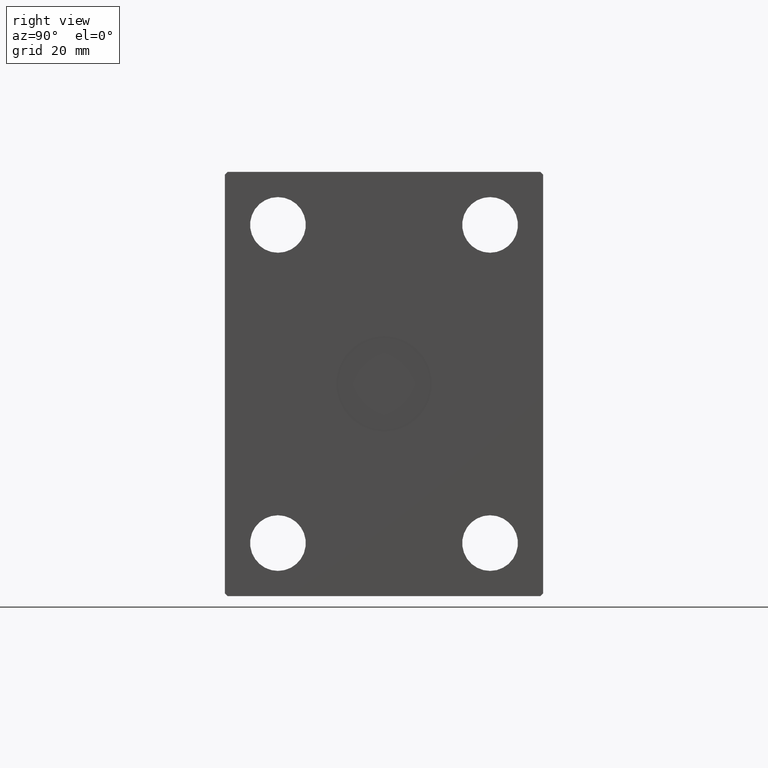
[diagram: clean part render]
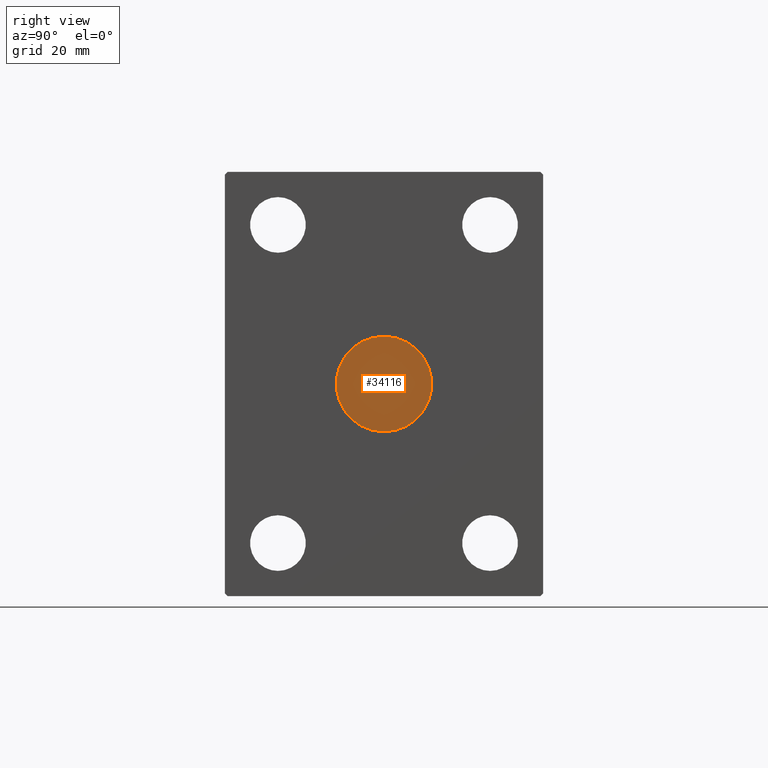
[diagram: same view with one face highlighted and labeled with its STEP entity id]
A machine part, right view. The second image highlights one B-rep face of the part: STEP entity #34116.
In plain terms, the highlighted planar face has unit normal (1, 0, 0).
Its self-contained STEP definition (entity closure, byte-faithful):
#511 = AXIS2_PLACEMENT_3D ( 'NONE', #31539, #34326, #25065 ) ;
#5812 = FACE_OUTER_BOUND ( 'NONE', #16710, .T. ) ;
#7394 = AXIS2_PLACEMENT_3D ( 'NONE', #41521, #9897, #23012 ) ;
#9897 = DIRECTION ( 'NONE',  ( 1.000000000000000000, 0.000000000000000000, 0.000000000000000000 ) ) ;
#15109 = ORIENTED_EDGE ( 'NONE', *, *, #37335, .T. ) ;
#16710 = EDGE_LOOP ( 'NONE', ( #15109, #27184 ) ) ;
#18083 = CARTESIAN_POINT ( 'NONE',  ( 189.7999999999999829, 0.000000000000000000, 0.000000000000000000 ) ) ;
#18947 = PLANE ( 'NONE',  #30967 ) ;
#19350 = EDGE_CURVE ( 'NONE', #29477, #22857, #32810, .T. ) ;
#22857 = VERTEX_POINT ( 'NONE', #26596 ) ;
#23012 = DIRECTION ( 'NONE',  ( 0.000000000000000000, 0.000000000000000000, -1.000000000000000000 ) ) ;
#25065 = DIRECTION ( 'NONE',  ( 0.000000000000000000, 0.000000000000000000, -1.000000000000000000 ) ) ;
#26596 = CARTESIAN_POINT ( 'NONE',  ( 189.7999999999999829, 0.000000000000000000, -18.00000000000000000 ) ) ;
#27184 = ORIENTED_EDGE ( 'NONE', *, *, #19350, .T. ) ;
#29477 = VERTEX_POINT ( 'NONE', #30274 ) ;
#30274 = CARTESIAN_POINT ( 'NONE',  ( 189.7999999999999829, 2.204364238465235428E-15, 18.00000000000000000 ) ) ;
#30967 = AXIS2_PLACEMENT_3D ( 'NONE', #18083, #31212, #32071 ) ;
#31212 = DIRECTION ( 'NONE',  ( 1.000000000000000000, 0.000000000000000000, 0.000000000000000000 ) ) ;
#31539 = CARTESIAN_POINT ( 'NONE',  ( 189.7999999999999829, 0.000000000000000000, 0.000000000000000000 ) ) ;
#32071 = DIRECTION ( 'NONE',  ( 0.000000000000000000, 0.000000000000000000, -1.000000000000000000 ) ) ;
#32810 = CIRCLE ( 'NONE', #7394, 18.00000000000000000 ) ;
#34116 = ADVANCED_FACE ( 'NONE', ( #5812 ), #18947, .T. ) ;
#34326 = DIRECTION ( 'NONE',  ( 1.000000000000000000, 0.000000000000000000, 0.000000000000000000 ) ) ;
#37335 = EDGE_CURVE ( 'NONE', #22857, #29477, #38930, .T. ) ;
#38930 = CIRCLE ( 'NONE', #511, 18.00000000000000000 ) ;
#41521 = CARTESIAN_POINT ( 'NONE',  ( 189.7999999999999829, 0.000000000000000000, 0.000000000000000000 ) ) ;